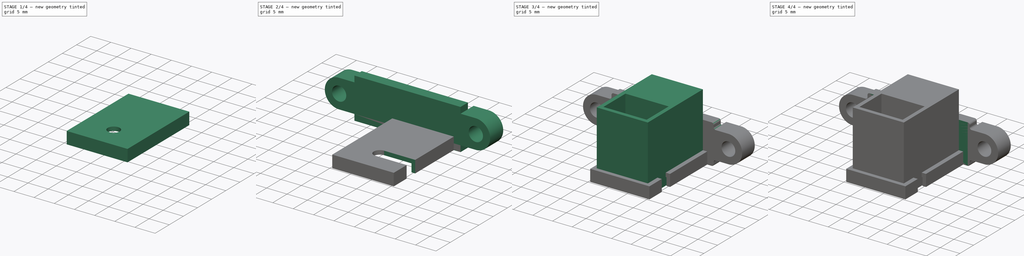
[diagram: build sequence overview — one tinted view per stage of 4, left to right]
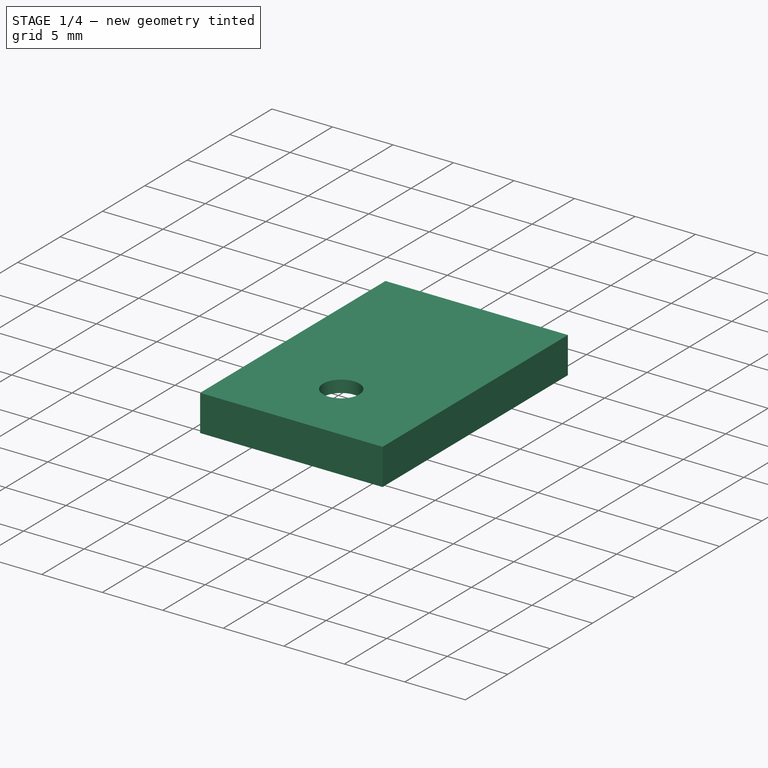
[diagram: stage 1 of 4 — iso view after this stage's code; geometry added in this stage tinted green]
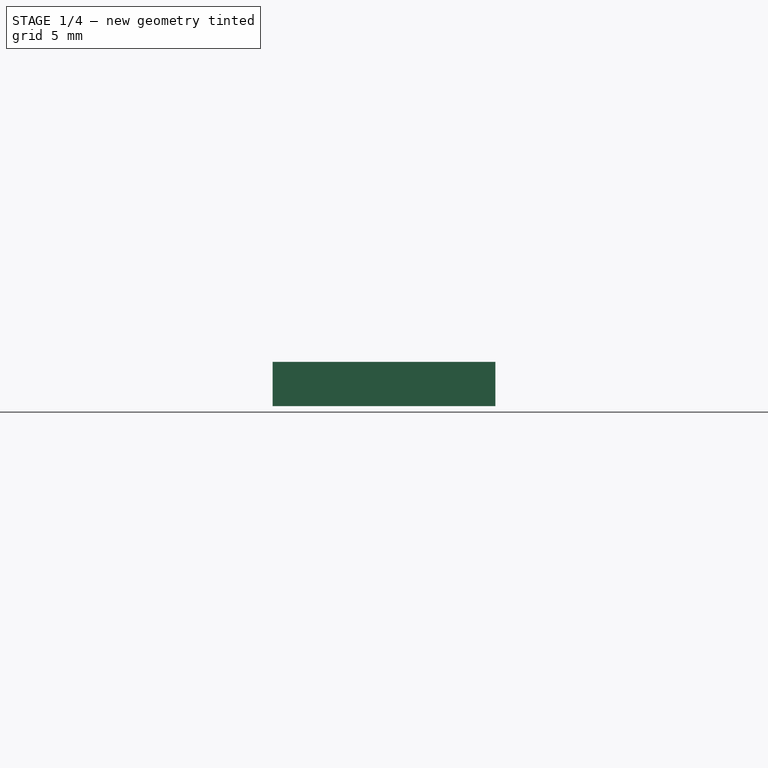
[diagram: stage 1 of 4 — front view after this stage's code; geometry added in this stage tinted green]
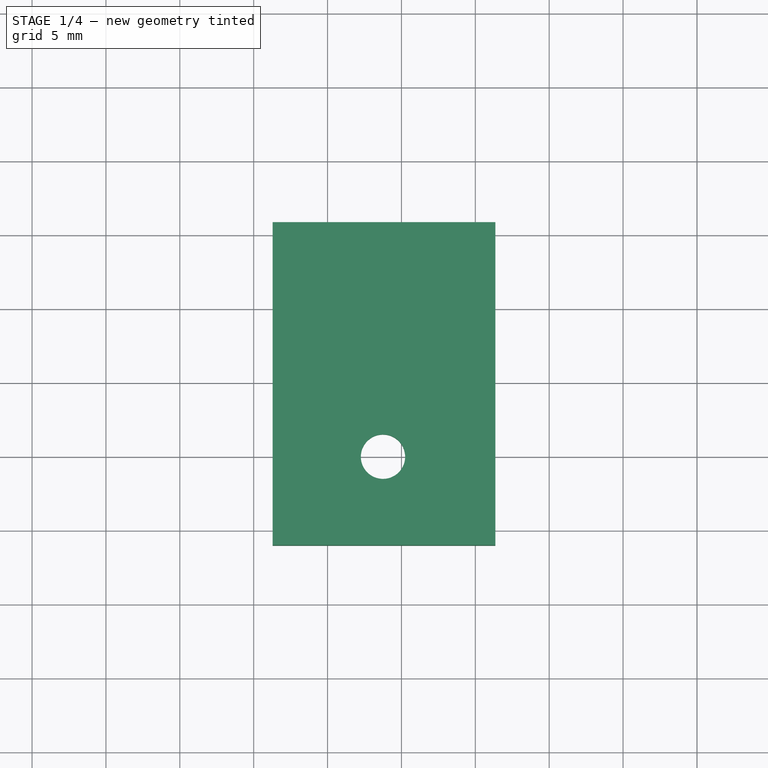
[diagram: stage 1 of 4 — top view after this stage's code; geometry added in this stage tinted green]
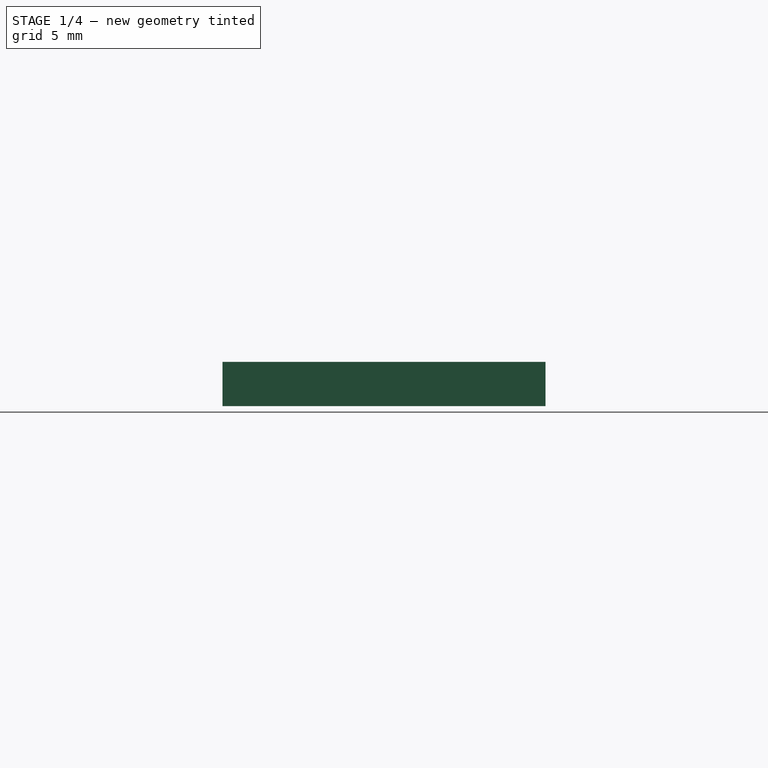
[diagram: stage 1 of 4 — right view after this stage's code; geometry added in this stage tinted green]
FCSTD DOCUMENT  (FreeCAD 1.0R39109 (Git))
Label: FilamentCleaner
License: All rights reserved
LicenseURL: http://en.wikipedia.org/wiki/All_rights_reserved
objects: Sketcher::SketchObject×12, PartDesign::Pocket×7, PartDesign::Pad×4, PartDesign::Body×3, PartDesign::Fillet×2
note: 66 computed .brp shape members not serialized (recipe doc carries the construction recipe); baked Part::Feature solids carry a one-line shape summary decoded from their .brp

FEATURE [Sketcher::SketchObject] Sketch017
  ArcFitTolerance = 1e-06
  AttachmentSupport = -> [XY_Plane004]
  FullyConstrained = false
  MakeInternals = false
  MapMode = 5
  sketch-geometry (10):
    g0: LineSegment [constr] StartX=-2.72 StartY=0 StartZ=0 EndX=-2.72 EndY=-20.0035 EndZ=0
    g1: LineSegment [constr] StartX=-2.72 StartY=-20.0035 StartZ=0 EndX=10.25 EndY=-20.0035 EndZ=0
    g2: LineSegment [constr] StartX=10.25 StartY=-20.0035 StartZ=0 EndX=10.25 EndY=0 EndZ=0
    g3: LineSegment [constr] StartX=10.25 StartY=0 StartZ=0 EndX=-2.72 EndY=0 EndZ=0
    g4: LineSegment [constr] StartX=10.25 StartY=0 StartZ=0 EndX=11.25 EndY=1 EndZ=0
    g5: LineSegment StartX=11.3568 StartY=0.865122 StartZ=0 EndX=-3.72 EndY=0.865122 EndZ=0
    g6: LineSegment StartX=-3.72 StartY=-21.0035 StartZ=0 EndX=11.3568 EndY=-21.0035 EndZ=0
    g7: LineSegment StartX=-3.72 StartY=0.865122 StartZ=0 EndX=-3.72 EndY=-21.0035 EndZ=0
    g8: LineSegment StartX=11.3568 StartY=-21.0035 StartZ=0 EndX=11.3568 EndY=0.865122 EndZ=0
    g9: LineSegment [constr] StartX=-2.72 StartY=-20.0035 StartZ=0 EndX=-3.72 EndY=-21.0035 EndZ=0
  constraints (26):
    c: Coincident(g0,g1)
    c: Coincident(g1,g2)
    c: Coincident(g2,g3)
    c: Coincident(g3,g0)
    c: Vertical(g0)
    c: Vertical(g2)
    c: Horizontal(g1)
    c: Horizontal(g3)
    c: Distance(g0,g2) = 12.97
    c: PointOnObject(g0,g-1)
    c: Angle(g-1,g4) = 0.785398
    c: Coincident(g4,g2)
    c: DistanceX(g2,g4) = 1
    c: Coincident(g7,g5)
    c: Coincident(g7,g6)
    c: Vertical(g7)
    c: Coincident(g8,g6)
    c: Coincident(g8,g5)
    c: Vertical(g8)
    c: Equal(g7,g8)
    c: Horizontal(g5)
    c: DistanceX(g-2,g0) = -2.72
    c: DistanceX(g5,g-1) = 3.72
    c: Coincident(g9,g0)
    c: Coincident(g9,g6)
    c: DistanceY(g9,g9) = 1
FEATURE [PartDesign::Pad] Pad006
  Direction = (0,0,1)
  Length = 3
  Length2 = 10
  Profile = -> Sketch017
  ReferenceAxis = -> Sketch017 [N_Axis]
  Suppressed = false
  Type = 0
FEATURE [Sketcher::SketchObject] Sketch018
  ArcFitTolerance = 1e-06
  AttachmentSupport = -> [Pad006]
  ExternalGeometry = -> [Sketch017]
  FullyConstrained = true
  MakeInternals = false
  MapMode = 5
  Placement = pos=(0,0,0) rot=(1,0,0;3.14159rad)
  sketch-geometry (6):
    g0: LineSegment [constr] StartX=-3.72 StartY=21.0035 StartZ=0 EndX=-2.82 EndY=20.1035 EndZ=0
    g1: LineSegment StartX=-2.82 StartY=20.1035 StartZ=0 EndX=-2.82 EndY=0.034878 EndZ=0
    g2: LineSegment [constr] StartX=11.3568 StartY=-0.865122 StartZ=0 EndX=10.4568 EndY=0.034878 EndZ=0
    g3: LineSegment StartX=10.4568 StartY=0.034878 StartZ=0 EndX=10.4568 EndY=20.1035 EndZ=0
    g4: LineSegment StartX=10.4568 StartY=20.1035 StartZ=0 EndX=-2.82 EndY=20.1035 EndZ=0
    g5: LineSegment StartX=-2.82 StartY=0.034878 StartZ=0 EndX=10.4568 EndY=0.034878 EndZ=0
  constraints (16):
    c: Angle(g-1,g0) = -0.785398
    c: Coincident(g0,g-4)
    c: DistanceX(g0,g0) = 0.9
    c: Vertical(g1)
    c: Coincident(g1,g0)
    c: Angle(g-5,g2) = 0.785398
    c: DistanceX(g2,g2) = 0.9
    c: Coincident(g2,g-6)
    c: Vertical(g3)
    c: Coincident(g3,g2)
    c: Coincident(g4,g3)
    c: Coincident(g4,g0)
    c: Horizontal(g4)
    c: Coincident(g5,g1)
    c: Coincident(g5,g2)
    c: Horizontal(g5)
FEATURE [PartDesign::Pocket] Pocket009
  BaseFeature = -> Pad006
  Direction = (0,0,1)
  Length = 2
  Length2 = 5
  Profile = -> Sketch018
  ReferenceAxis = -> Sketch018 [N_Axis]
  Suppressed = false
  Type = 0
FEATURE [Sketcher::SketchObject] Sketch020
  ArcFitTolerance = 1e-06
  AttachmentSupport = -> [Pocket008]
  ExternalGeometry = -> [Pocket008]
  FullyConstrained = true
  MakeInternals = false
  MapMode = 5
  Placement = pos=(0,3.8e-15,17) rot=(0,0,1;0rad)
  sketch-geometry (8):
    g0: LineSegment StartX=-2.75 StartY=0 StartZ=0 EndX=-2.75 EndY=-20 EndZ=0
    g1: LineSegment StartX=-2.75 StartY=-20 StartZ=0 EndX=10.25 EndY=-20 EndZ=0
    g2: LineSegment StartX=10.25 StartY=-20 StartZ=0 EndX=10.25 EndY=0 EndZ=0
    g3: LineSegment StartX=10.25 StartY=0 StartZ=0 EndX=-2.75 EndY=0 EndZ=0
    g4: LineSegment StartX=-1.75 StartY=-11 StartZ=0 EndX=-1.75 EndY=-19 EndZ=0
    g5: LineSegment StartX=-1.75 StartY=-19 StartZ=0 EndX=9.25 EndY=-19 EndZ=0
    g6: LineSegment StartX=9.25 StartY=-19 StartZ=0 EndX=9.25 EndY=-11 EndZ=0
    g7: LineSegment StartX=9.25 StartY=-11 StartZ=0 EndX=-1.75 EndY=-11 EndZ=0
  constraints (18):
    c: Coincident(g-6,g0)
    c: Coincident(g0,g-5)
    c: Coincident(g0,g1)
    c: Coincident(g1,g-5)
    c: Coincident(g1,g2)
    c: Coincident(g2,g-6)
    c: Coincident(g2,g3)
    c: Coincident(g3,g0)
    c: Coincident(g4,g5)
    c: Coincident(g5,g6)
    c: Coincident(g6,g7)
    c: Coincident(g7,g4)
    c: Vertical(g4)
    c: Vertical(g6)
    c: Horizontal(g5)
    c: Horizontal(g7)
    c: Coincident(g4,g-9)
    c: Coincident(g5,g-10)
FEATURE [PartDesign::Body] Body003
  AllowCompound = false
  Group = -> [Sketch012,Pad004,Sketch013,Pocket006,Fillet003,Sketch014,Pad005,Sketch015,Pocket007,Sketch016,Pocket008,Sketch020]
  Origin = -> Origin003
  Tip = -> Pocket008
FEATURE [Sketcher::SketchObject] Sketch021
  ArcFitTolerance = 1e-06
  AttachmentSupport = -> [Pocket009]
  FullyConstrained = false
  MakeInternals = false
  MapMode = 5
  Placement = pos=(0,0,2) rot=(1,0,0;3.14159rad)
  sketch-geometry (2):
    g0: GeomPoint X=3.74994 Y=15.0157 Z=0
    g1: Circle CenterX=3.74994 CenterY=15.0157 CenterZ=0 NormalX=0 NormalY=0 NormalZ=1 AngleXU=0 Radius=1.5
  constraints (2):
    c: Diameter(g1) = 3
    c: Coincident(g1,g0)
FEATURE [PartDesign::Pocket] Pocket010
  BaseFeature = -> Pocket009
  Direction = (0,0,1)
  Length = 5
  Length2 = 5
  Profile = -> Sketch021
  ReferenceAxis = -> Sketch021 [N_Axis]
  Suppressed = false
  Type = 0
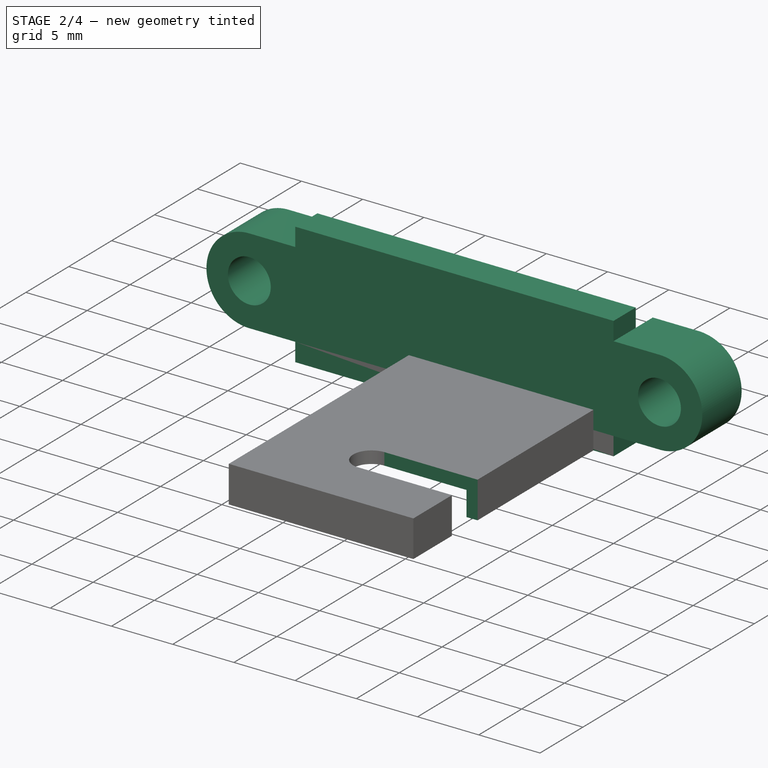
[diagram: stage 2 of 4 — iso view after this stage's code; geometry added in this stage tinted green]
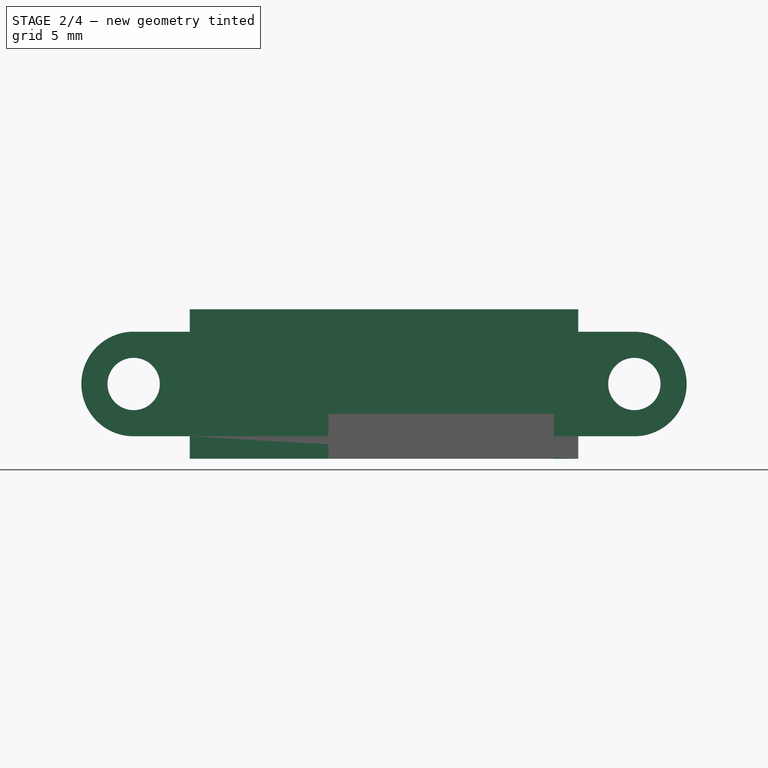
[diagram: stage 2 of 4 — front view after this stage's code; geometry added in this stage tinted green]
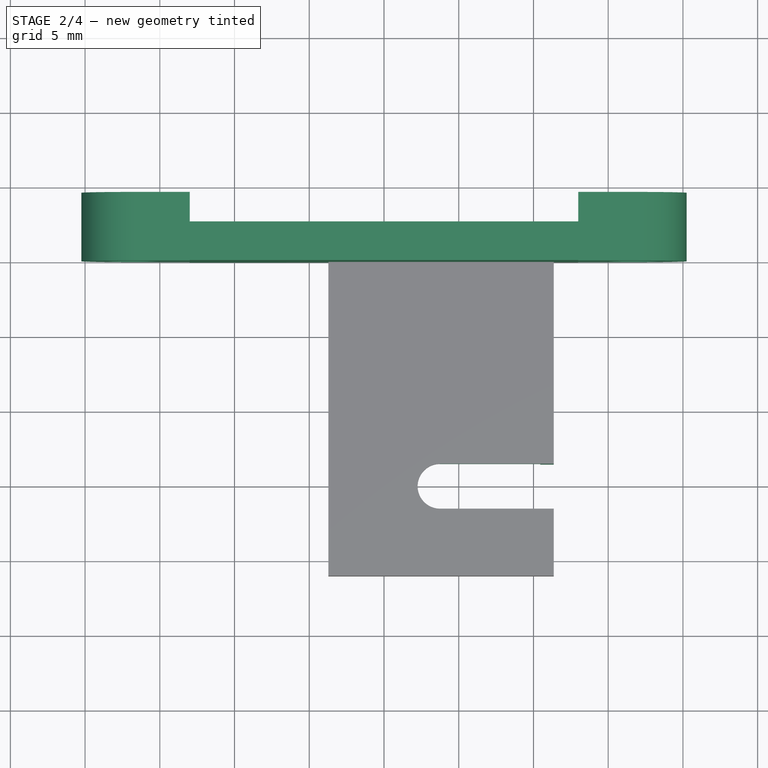
[diagram: stage 2 of 4 — top view after this stage's code; geometry added in this stage tinted green]
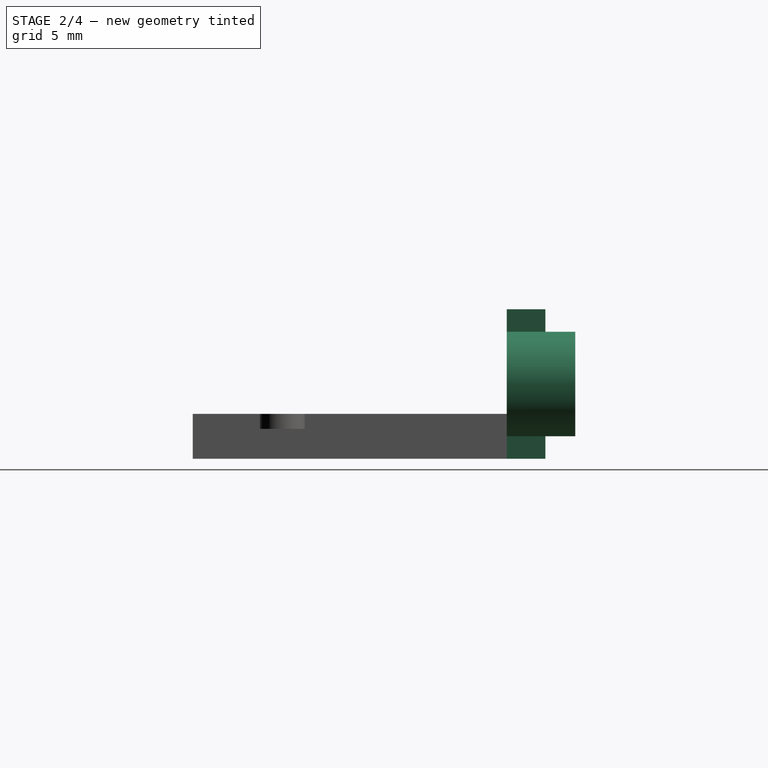
[diagram: stage 2 of 4 — right view after this stage's code; geometry added in this stage tinted green]
FEATURE [PartDesign::Body] Body
  AllowCompound = false
  Group = -> [Sketch,Pad,Sketch001,Pocket,Fillet]
  Origin = -> Origin
  Tip = -> Fillet
FEATURE [Sketcher::SketchObject] Sketch012
  ArcFitTolerance = 1e-06
  AttachmentSupport = -> [XY_Plane003]
  FullyConstrained = false
  MakeInternals = false
  MapMode = 5
  sketch-geometry (9):
    g0: LineSegment StartX=-20.5 StartY=4.58254 StartZ=0 EndX=-20.5 EndY=0 EndZ=0
    g1: LineSegment StartX=-20.5 StartY=0 StartZ=0 EndX=20.5 EndY=0 EndZ=0
    g2: LineSegment StartX=20.5 StartY=0 StartZ=0 EndX=20.5 EndY=4.58254 EndZ=0
    g3: LineSegment StartX=20.5 StartY=4.58254 StartZ=0 EndX=13 EndY=4.58254 EndZ=0
    g4: LineSegment StartX=-13 StartY=2.58254 StartZ=0 EndX=13 EndY=2.58254 EndZ=0
    g5: LineSegment StartX=13 StartY=2.58254 StartZ=0 EndX=13 EndY=4.58254 EndZ=0
    g6: LineSegment [constr] StartX=-13 StartY=4.58254 StartZ=0 EndX=13 EndY=4.58254 EndZ=0
    g7: LineSegment StartX=-20.5 StartY=4.58254 StartZ=0 EndX=-13 EndY=4.58254 EndZ=0
    g8: LineSegment StartX=-13 StartY=4.58254 StartZ=0 EndX=-13 EndY=2.58254 EndZ=0
  constraints (24):
    c: Coincident(g0,g1)
    c: Coincident(g1,g2)
    c: Coincident(g2,g3)
    c: Vertical(g0)
    c: Vertical(g2)
    c: Horizontal(g1)
    c: PointOnObject(g1,g-1)
    c: Symmetric(g2,g0,g-2)
    c: Horizontal(g4)
    c: Coincident(g4,g5)
    c: Coincident(g3,g5)
    c: Coincident(g6,g3)
    c: Horizontal(g6)
    c: Vertical(g5)
    c: Coincident(g0,g7)
    c: Coincident(g7,g6)
    c: Horizontal(g7)
    c: Coincident(g7,g8)
    c: Coincident(g8,g4)
    c: Vertical(g8)
    c: Distance(g1) = 41
    c: Equal(g7,g3)
    c: Distance(g7) = 7.5
    c: Distance(g8) = 2
FEATURE [PartDesign::Pad] Pad004
  Direction = (0,0,1)
  Length = 10
  Length2 = 10
  Profile = -> Sketch012
  ReferenceAxis = -> Sketch012 [N_Axis]
  Suppressed = false
  Type = 0
FEATURE [Sketcher::SketchObject] Sketch013
  ArcFitTolerance = 1e-06
  AttachmentSupport = -> [Pad004]
  ExternalGeometry = -> [Pad004]
  FullyConstrained = false
  MakeInternals = false
  MapMode = 5
  Placement = pos=(0,4.58254,0) rot=(0,0.707107,0.707107;3.14159rad)
  sketch-geometry (22):
    g0: LineSegment [constr] StartX=-16.75 StartY=5 StartZ=0 EndX=-20.5 EndY=-3e-16 EndZ=0
    g1: LineSegment [constr] StartX=-20.5 StartY=10 StartZ=0 EndX=-16.75 EndY=5 EndZ=0
    g2: ArcOfCircle CenterX=-16.75 CenterY=5 CenterZ=0 NormalX=0 NormalY=0 NormalZ=1 AngleXU=0 Radius=3.5 StartAngle=1.5708 EndAngle=4.74661
    g3: Circle CenterX=-16.75 CenterY=5 CenterZ=0 NormalX=0 NormalY=0 NormalZ=1 AngleXU=0 Radius=1.75
    g4: LineSegment StartX=-20.5 StartY=10 StartZ=0 EndX=-20.5 EndY=0 EndZ=0
    g5: LineSegment StartX=-20.5 StartY=-3e-16 StartZ=0 EndX=-13 EndY=0 EndZ=0
    g6: LineSegment StartX=-20.5 StartY=10 StartZ=0 EndX=-13 EndY=10 EndZ=0
    g7: LineSegment StartX=-13 StartY=10 StartZ=0 EndX=-13 EndY=8.5 EndZ=0
    g8: LineSegment StartX=-16.75 StartY=8.5 StartZ=0 EndX=-13 EndY=8.5 EndZ=0
    g9: LineSegment StartX=-16.6303 StartY=1.50205 StartZ=0 EndX=-13 EndY=1.50205 EndZ=0
    g10: LineSegment StartX=-13 StartY=0 StartZ=0 EndX=-13 EndY=1.50205 EndZ=0
    g11: LineSegment [constr] StartX=16.75 StartY=5 StartZ=0 EndX=20.5 EndY=2e-16 EndZ=0
    g12: LineSegment [constr] StartX=20.5 StartY=10 StartZ=0 EndX=16.75 EndY=5 EndZ=0
    g13: ArcOfCircle CenterX=16.75 CenterY=5 CenterZ=0 NormalX=0 NormalY=0 NormalZ=1 AngleXU=0 Radius=3.5 StartAngle=4.67817 EndAngle=7.85398
    g14: Circle CenterX=16.75 CenterY=5 CenterZ=0 NormalX=0 NormalY=0 NormalZ=1 AngleXU=0 Radius=1.75
    g15: LineSegment StartX=20.5 StartY=10 StartZ=0 EndX=20.5 EndY=0 EndZ=0
    g16: LineSegment StartX=20.5 StartY=-3e-16 StartZ=0 EndX=13 EndY=0 EndZ=0
    g17: LineSegment StartX=20.5 StartY=10 StartZ=0 EndX=13 EndY=10 EndZ=0
    g18: LineSegment StartX=13 StartY=10 StartZ=0 EndX=13 EndY=8.5 EndZ=0
    g19: LineSegment StartX=16.75 StartY=8.5 StartZ=0 EndX=13 EndY=8.5 EndZ=0
    g20: LineSegment StartX=16.6303 StartY=1.50205 StartZ=0 EndX=13 EndY=1.50205 EndZ=0
    g21: LineSegment StartX=13 StartY=0 StartZ=0 EndX=13 EndY=1.50205 EndZ=0
  constraints (38):
    c: Coincident(g0,g-4)
    c: Coincident(g1,g-4)
    c: Coincident(g1,g0)
    c: Diameter(g2) = 7
    c: Coincident(g2,g0)
    c: Diameter(g3) = 3.5
    c: Coincident(g3,g0)
    c: Coincident(g4,g1)
    c: Coincident(g4,g0)
    c: Coincident(g5,g0)
    c: Coincident(g5,g-3)
    c: Coincident(g6,g1)
    c: Coincident(g6,g-3)
    c: Coincident(g7,g6)
    c: Vertical(g7)
    c: Coincident(g8,g2)
    c: Coincident(g8,g7)
    c: Horizontal(g8)
    c: Horizontal(g9)
    c: Coincident(g9,g2)
    c: Coincident(g9,g10)
    c: Coincident(g12,g11)
    c: Diameter(g13) = 7
    c: Coincident(g13,g11)
    c: Diameter(g14) = 3.5
    c: Coincident(g14,g11)
    c: Coincident(g15,g12)
    c: Coincident(g15,g11)
    c: Coincident(g16,g11)
    c: Coincident(g17,g12)
    c: Coincident(g18,g17)
    c: Vertical(g18)
    c: Coincident(g19,g13)
    c: Coincident(g19,g18)
    c: Horizontal(g19)
    c: Horizontal(g20)
    c: Coincident(g20,g13)
    c: Coincident(g20,g21)
FEATURE [PartDesign::Pocket] Pocket006
  BaseFeature = -> Pad004
  Direction = (0,-1,2e-16)
  Length = 5
  Length2 = 5
  Profile = -> Sketch013
  ReferenceAxis = -> Sketch013 [N_Axis]
  Suppressed = false
  Type = 0
FEATURE [Sketcher::SketchObject] Sketch022
  ArcFitTolerance = 1e-06
  AttachmentSupport = -> [Pocket010]
  ExternalGeometry = -> [Pocket010]
  FullyConstrained = false
  MakeInternals = false
  MapMode = 5
  Placement = pos=(0,0,3) rot=(0,0,1;0rad)
  sketch-geometry (5):
    g0: LineSegment [constr] StartX=3.74994 StartY=-13.5157 StartZ=0 EndX=3.74994 EndY=-16.5157 EndZ=0
    g1: LineSegment StartX=3.74994 StartY=-16.5157 StartZ=0 EndX=11.9462 EndY=-16.5157 EndZ=0
    g2: LineSegment StartX=11.9462 StartY=-16.5157 StartZ=0 EndX=11.9462 EndY=-13.5157 EndZ=0
    g3: LineSegment StartX=11.9462 StartY=-13.5157 StartZ=0 EndX=3.74994 EndY=-13.5157 EndZ=0
    g4: ArcOfCircle CenterX=3.74994 CenterY=-15.0157 CenterZ=0 NormalX=0 NormalY=0 NormalZ=1 AngleXU=0 Radius=1.5 StartAngle=1.5708 EndAngle=4.71239
  constraints (11):
    c: Coincident(g0,g1)
    c: Coincident(g1,g2)
    c: Coincident(g2,g3)
    c: Coincident(g3,g0)
    c: Vertical(g0)
    c: Vertical(g2)
    c: Horizontal(g1)
    c: Horizontal(g3)
    c: Coincident(g4,g-3)
    c: Coincident(g4,g0)
    c: Coincident(g4,g0)
FEATURE [PartDesign::Pocket] Pocket011
  BaseFeature = -> Pocket010
  Direction = (0,0,-1)
  Length = 5
  Length2 = 5
  Profile = -> Sketch022
  ReferenceAxis = -> Sketch022 [N_Axis]
  Suppressed = false
  Type = 0
FEATURE [PartDesign::Body] Body004
  AllowCompound = false
  Group = -> [Sketch017,Pad006,Sketch018,Pocket009,Sketch021,Pocket010,Sketch022,Pocket011]
  Origin = -> Origin004
  Placement = pos=(0,0,16) rot=(0,0,1;0rad)
  Tip = -> Pocket011
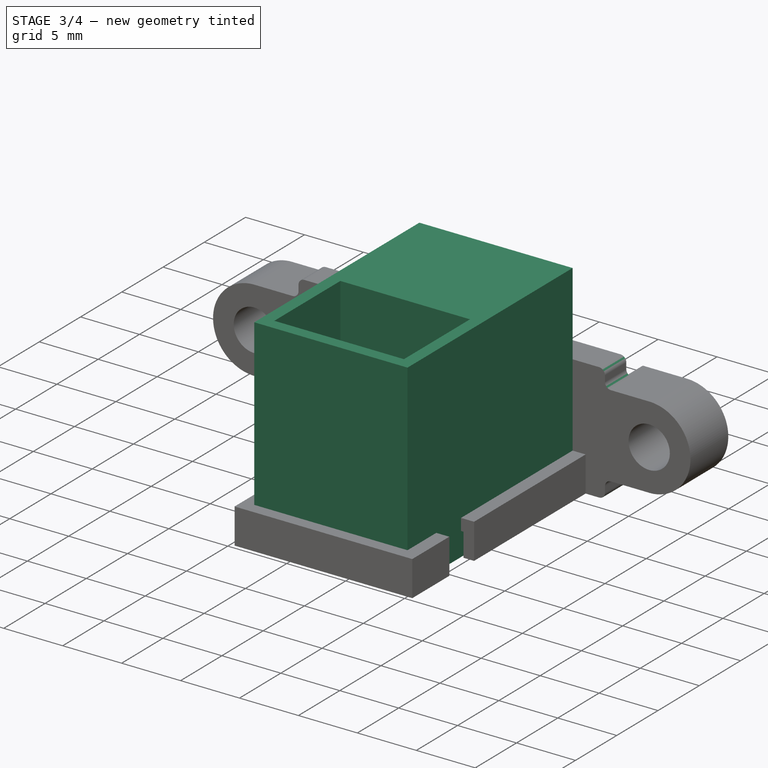
[diagram: stage 3 of 4 — iso view after this stage's code; geometry added in this stage tinted green]
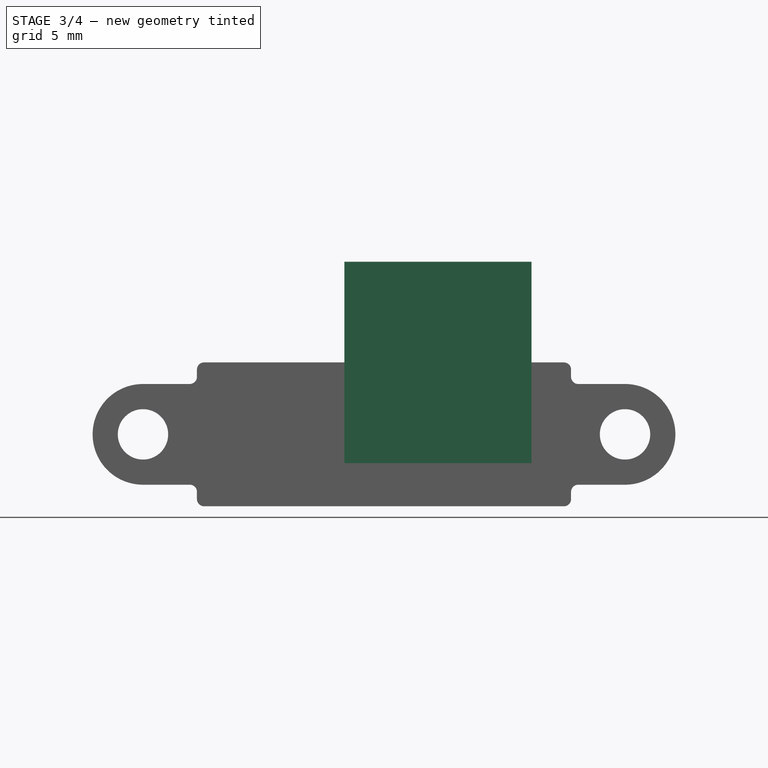
[diagram: stage 3 of 4 — front view after this stage's code; geometry added in this stage tinted green]
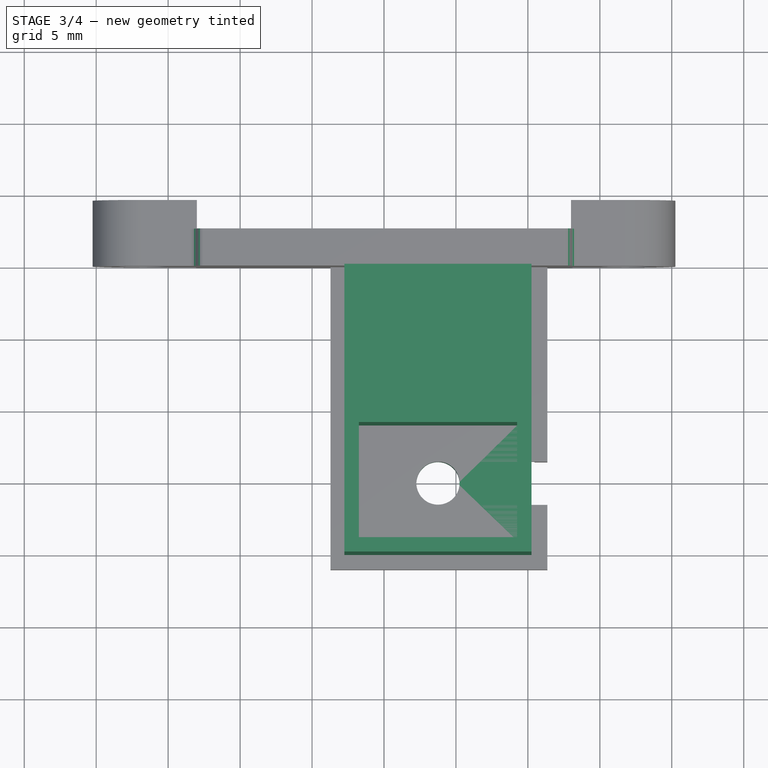
[diagram: stage 3 of 4 — top view after this stage's code; geometry added in this stage tinted green]
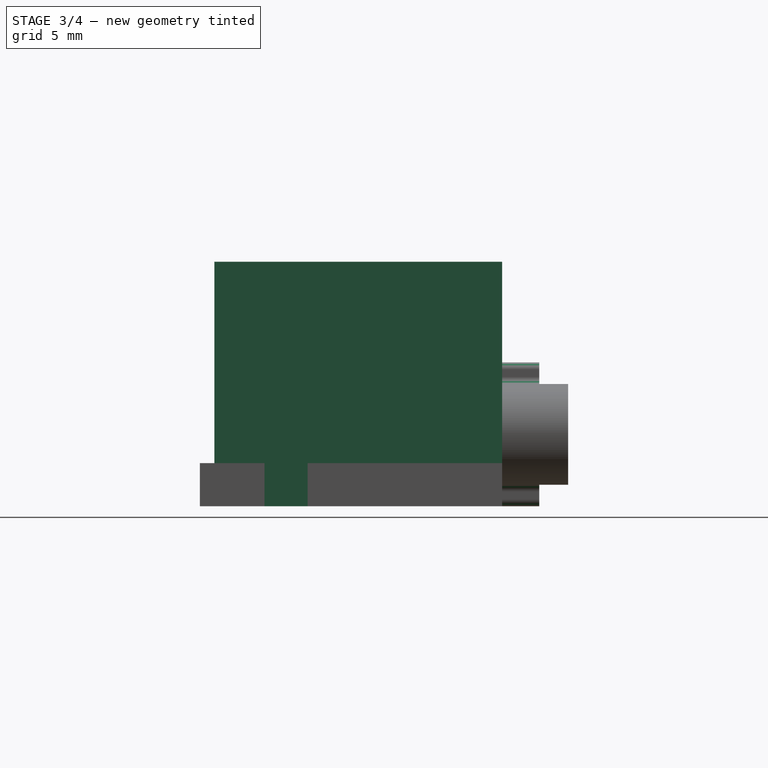
[diagram: stage 3 of 4 — right view after this stage's code; geometry added in this stage tinted green]
FEATURE [PartDesign::Fillet] Fillet003
  Base = -> Pocket006 [Edge14,Edge36,Edge26,Edge9,Edge43,Edge42,Edge37,Edge38]
  BaseFeature = -> Pocket006
  Radius = 0.5
  SupportTransform = false
  Suppressed = false
  UseAllEdges = false
FEATURE [Sketcher::SketchObject] Sketch014
  ArcFitTolerance = 1e-06
  AttachmentSupport = -> [Fillet003]
  ExternalGeometry = -> [Fillet003]
  FullyConstrained = true
  MakeInternals = false
  MapMode = 5
  Placement = pos=(0,0,0) rot=(1,0,0;1.5708rad)
  sketch-geometry (5):
    g0: LineSegment StartX=-2.75 StartY=17 StartZ=0 EndX=-2.75 EndY=0 EndZ=0
    g1: LineSegment StartX=-2.75 StartY=0 StartZ=0 EndX=10.25 EndY=0 EndZ=0
    g2: LineSegment StartX=10.25 StartY=0 StartZ=0 EndX=10.25 EndY=17 EndZ=0
    g3: LineSegment StartX=10.25 StartY=17 StartZ=0 EndX=-2.75 EndY=17 EndZ=0
    g4: LineSegment [constr] StartX=16.75 StartY=5 StartZ=0 EndX=20.25 EndY=5 EndZ=0
  constraints (15):
    c: Coincident(g0,g1)
    c: Coincident(g1,g2)
    c: Coincident(g2,g3)
    c: Coincident(g3,g0)
    c: Vertical(g0)
    c: Vertical(g2)
    c: Horizontal(g1)
    c: Horizontal(g3)
    c: PointOnObject(g1,g-1)
    c: Distance(g2) = 17
    c: Distance(g3) = 13
    c: Coincident(g4,g-3)
    c: PointOnObject(g4,g-3)
    c: Horizontal(g4)
    c: Distance(g4,g2) = 10
FEATURE [PartDesign::Pad] Pad005
  BaseFeature = -> Fillet003
  Direction = (0,-1,2e-16)
  Length = 20
  Length2 = 10
  Profile = -> Sketch014
  ReferenceAxis = -> Sketch014 [N_Axis]
  Suppressed = false
  Type = 0
FEATURE [Sketcher::SketchObject] Sketch015
  ArcFitTolerance = 1e-06
  AttachmentSupport = -> [Pad005]
  ExternalGeometry = -> [Pad005]
  FullyConstrained = true
  MakeInternals = false
  MapMode = 5
  Placement = pos=(0,3.8e-15,17) rot=(0,0,1;0rad)
  sketch-geometry (11):
    g0: LineSegment [constr] StartX=-2.75 StartY=-20 StartZ=0 EndX=10.25 EndY=-20 EndZ=0
    g1: LineSegment [constr] StartX=10.25 StartY=-20 StartZ=0 EndX=10.25 EndY=0 EndZ=0
    g2: LineSegment [constr] StartX=10.25 StartY=0 StartZ=0 EndX=-2.75 EndY=0 EndZ=0
    g3: LineSegment [constr] StartX=-2.75 StartY=0 StartZ=0 EndX=-2.75 EndY=-20 EndZ=0
    g4: LineSegment StartX=-1.75 StartY=-19 StartZ=0 EndX=9.25 EndY=-19 EndZ=0
    g5: LineSegment StartX=9.25 StartY=-19 StartZ=0 EndX=9.25 EndY=-11 EndZ=0
    g6: LineSegment StartX=9.25 StartY=-11 StartZ=0 EndX=-1.75 EndY=-11 EndZ=0
    g7: LineSegment StartX=-1.75 StartY=-11 StartZ=0 EndX=-1.75 EndY=-19 EndZ=0
    g8: LineSegment [constr] StartX=-2.75 StartY=-20 StartZ=0 EndX=-1.75 EndY=-19 EndZ=0
    g9: LineSegment [constr] StartX=10.25 StartY=-20 StartZ=0 EndX=9.25 EndY=-19 EndZ=0
    g10: LineSegment [constr] StartX=9.25 StartY=-11 StartZ=0 EndX=10.25 EndY=-11 EndZ=0
  constraints (29):
    c: Coincident(g0,g1)
    c: Coincident(g1,g2)
    c: Coincident(g2,g3)
    c: Coincident(g3,g0)
    c: Horizontal(g0)
    c: Horizontal(g2)
    c: Vertical(g1)
    c: Vertical(g3)
    c: Coincident(g4,g5)
    c: Coincident(g5,g6)
    c: Coincident(g6,g7)
    c: Coincident(g7,g4)
    c: Horizontal(g4)
    c: Horizontal(g6)
    c: Vertical(g5)
    c: Vertical(g7)
    c: Coincident(g8,g0)
    c: Coincident(g8,g4)
    c: Coincident(g9,g1)
    c: Coincident(g9,g5)
    c: Perpendicular(g8,g9)
    c: Distance(g4,g0) = 1
    c: Coincident(g0,g-5)
    c: Coincident(g1,g-6)
    c: Distance(g7) = 8
    c: Distance(g10) = 1
    c: Horizontal(g10)
    c: PointOnObject(g10,g1)
    c: Coincident(g10,g5)
FEATURE [PartDesign::Pocket] Pocket007
  BaseFeature = -> Pad005
  Direction = (0,0,-1)
  Length = 14
  Length2 = 5
  Profile = -> Sketch015
  ReferenceAxis = -> Sketch015 [N_Axis]
  Suppressed = false
  Type = 0
FEATURE [Sketcher::SketchObject] Sketch016
  ArcFitTolerance = 1e-06
  AttachmentSupport = -> [Pocket007]
  ExternalGeometry = -> [Pocket007]
  FullyConstrained = false
  MakeInternals = false
  MapMode = 5
  Placement = pos=(0,0,3) rot=(0,0,1;0rad)
  sketch-geometry (3):
    g0: LineSegment [constr] StartX=3.75 StartY=-15 StartZ=0 EndX=-1.75 EndY=-19 EndZ=0
    g1: LineSegment [constr] StartX=-1.75 StartY=-11 StartZ=0 EndX=3.75 EndY=-15 EndZ=0
    g2: Circle CenterX=3.75 CenterY=-15 CenterZ=0 NormalX=0 NormalY=0 NormalZ=1 AngleXU=0 Radius=1.5
  constraints (5):
    c: Coincident(g0,g-6)
    c: Coincident(g1,g-5)
    c: Coincident(g1,g0)
    c: Diameter(g2) = 3
    c: Coincident(g2,g0)
FEATURE [PartDesign::Pocket] Pocket008
  BaseFeature = -> Pocket007
  Direction = (0,0,-1)
  Length = 5
  Length2 = 5
  Profile = -> Sketch016
  ReferenceAxis = -> Sketch016 [N_Axis]
  Suppressed = false
  Type = 1
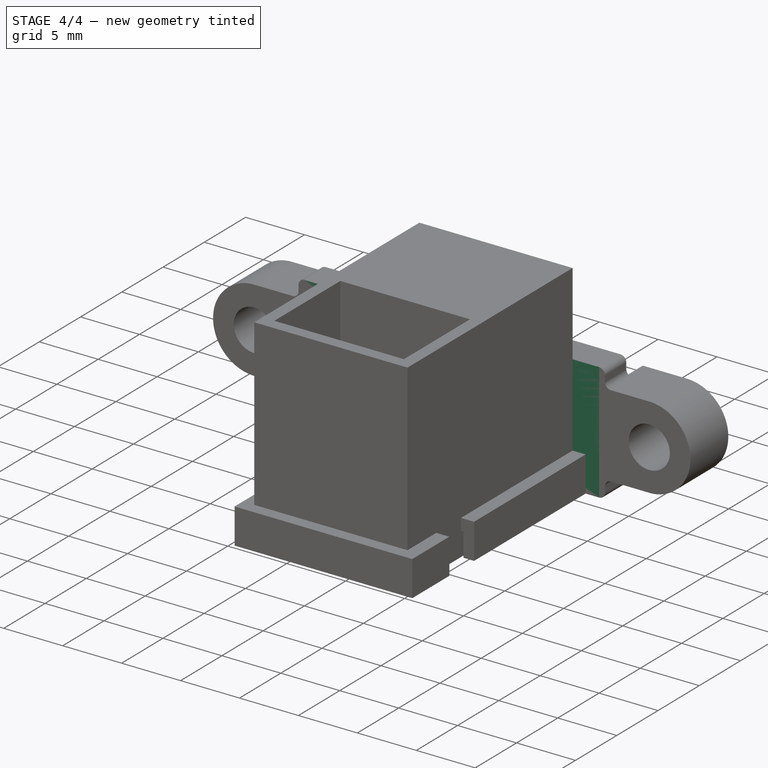
[diagram: stage 4 of 4 — iso view after this stage's code; geometry added in this stage tinted green]
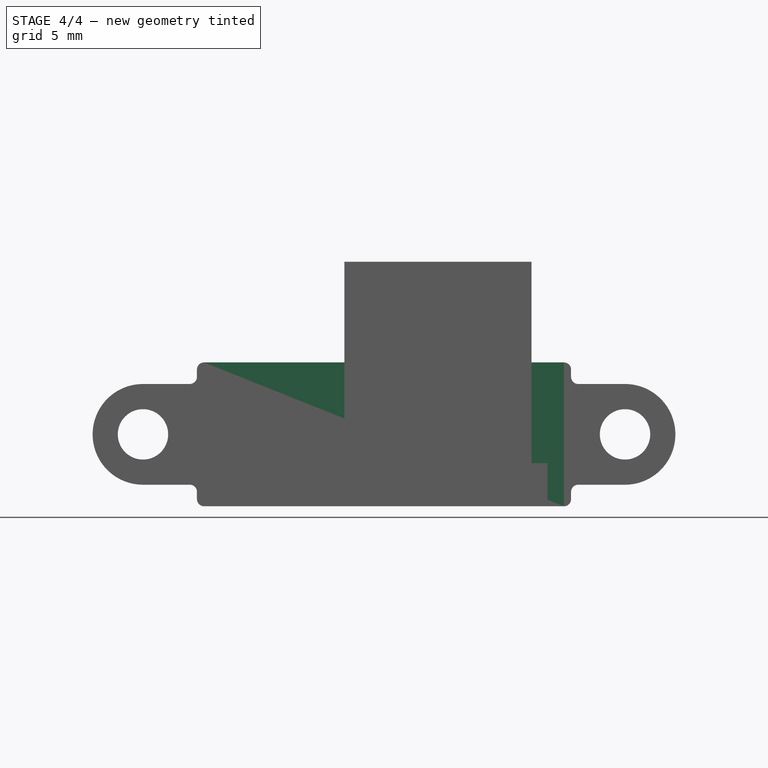
[diagram: stage 4 of 4 — front view after this stage's code; geometry added in this stage tinted green]
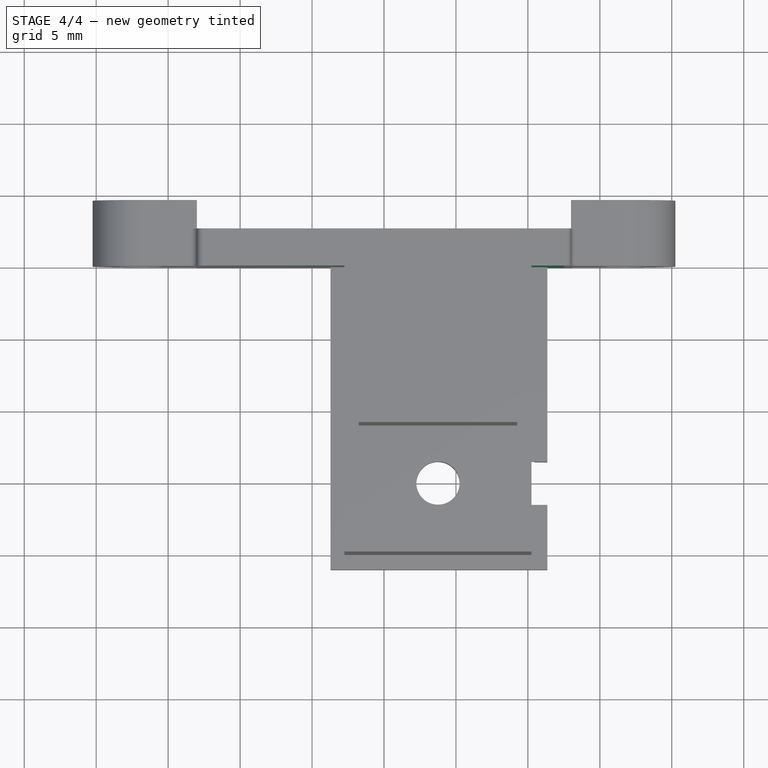
[diagram: stage 4 of 4 — top view after this stage's code; geometry added in this stage tinted green]
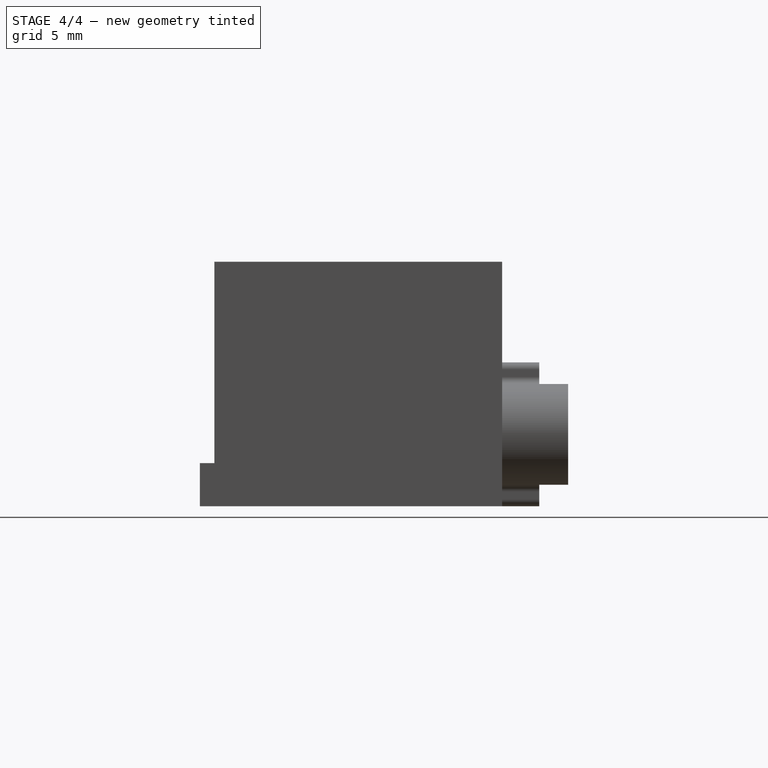
[diagram: stage 4 of 4 — right view after this stage's code; geometry added in this stage tinted green]
FEATURE [Sketcher::SketchObject] Sketch
  ArcFitTolerance = 1e-06
  AttachmentSupport = -> [XY_Plane]
  FullyConstrained = false
  MakeInternals = false
  MapMode = 5
  sketch-geometry (9):
    g0: LineSegment StartX=-20.5 StartY=4.58254 StartZ=0 EndX=-20.5 EndY=0 EndZ=0
    g1: LineSegment StartX=-20.5 StartY=0 StartZ=0 EndX=20.5 EndY=0 EndZ=0
    g2: LineSegment StartX=20.5 StartY=0 StartZ=0 EndX=20.5 EndY=4.58254 EndZ=0
    g3: LineSegment StartX=20.5 StartY=4.58254 StartZ=0 EndX=13 EndY=4.58254 EndZ=0
    g4: LineSegment StartX=-13 StartY=2.58254 StartZ=0 EndX=13 EndY=2.58254 EndZ=0
    g5: LineSegment StartX=13 StartY=2.58254 StartZ=0 EndX=13 EndY=4.58254 EndZ=0
    g6: LineSegment [constr] StartX=-13 StartY=4.58254 StartZ=0 EndX=13 EndY=4.58254 EndZ=0
    g7: LineSegment StartX=-20.5 StartY=4.58254 StartZ=0 EndX=-13 EndY=4.58254 EndZ=0
    g8: LineSegment StartX=-13 StartY=4.58254 StartZ=0 EndX=-13 EndY=2.58254 EndZ=0
  constraints (24):
    c: Coincident(g0,g1)
    c: Coincident(g1,g2)
    c: Coincident(g2,g3)
    c: Vertical(g0)
    c: Vertical(g2)
    c: Horizontal(g1)
    c: PointOnObject(g1,g-1)
    c: Symmetric(g2,g0,g-2)
    c: Horizontal(g4)
    c: Coincident(g4,g5)
    c: Coincident(g3,g5)
    c: Coincident(g6,g3)
    c: Horizontal(g6)
    c: Vertical(g5)
    c: Coincident(g0,g7)
    c: Coincident(g7,g6)
    c: Horizontal(g7)
    c: Coincident(g7,g8)
    c: Coincident(g8,g4)
    c: Vertical(g8)
    c: Distance(g1) = 41
    c: Equal(g7,g3)
    c: Distance(g7) = 7.5
    c: Distance(g8) = 2
FEATURE [PartDesign::Pad] Pad
  Direction = (0,0,1)
  Length = 10
  Length2 = 10
  Profile = -> Sketch
  ReferenceAxis = -> Sketch [N_Axis]
  Suppressed = false
  Type = 0
FEATURE [Sketcher::SketchObject] Sketch001
  ArcFitTolerance = 1e-06
  AttachmentSupport = -> [Pad]
  ExternalGeometry = -> [Pad]
  FullyConstrained = false
  MakeInternals = false
  MapMode = 5
  Placement = pos=(0,4.58254,0) rot=(0,0.707107,0.707107;3.14159rad)
  sketch-geometry (22):
    g0: LineSegment [constr] StartX=-16.75 StartY=5 StartZ=0 EndX=-20.5 EndY=-3e-16 EndZ=0
    g1: LineSegment [constr] StartX=-20.5 StartY=10 StartZ=0 EndX=-16.75 EndY=5 EndZ=0
    g2: ArcOfCircle CenterX=-16.75 CenterY=5 CenterZ=0 NormalX=0 NormalY=0 NormalZ=1 AngleXU=0 Radius=3.5 StartAngle=1.5708 EndAngle=4.74661
    g3: Circle CenterX=-16.75 CenterY=5 CenterZ=0 NormalX=0 NormalY=0 NormalZ=1 AngleXU=0 Radius=1.75
    g4: LineSegment StartX=-20.5 StartY=10 StartZ=0 EndX=-20.5 EndY=0 EndZ=0
    g5: LineSegment StartX=-20.5 StartY=-3e-16 StartZ=0 EndX=-13 EndY=0 EndZ=0
    g6: LineSegment StartX=-20.5 StartY=10 StartZ=0 EndX=-13 EndY=10 EndZ=0
    g7: LineSegment StartX=-13 StartY=10 StartZ=0 EndX=-13 EndY=8.5 EndZ=0
    g8: LineSegment StartX=-16.75 StartY=8.5 StartZ=0 EndX=-13 EndY=8.5 EndZ=0
    g9: LineSegment StartX=-16.6303 StartY=1.50205 StartZ=0 EndX=-13 EndY=1.50205 EndZ=0
    g10: LineSegment StartX=-13 StartY=0 StartZ=0 EndX=-13 EndY=1.50205 EndZ=0
    g11: LineSegment [constr] StartX=16.75 StartY=5 StartZ=0 EndX=20.5 EndY=2e-16 EndZ=0
    g12: LineSegment [constr] StartX=20.5 StartY=10 StartZ=0 EndX=16.75 EndY=5 EndZ=0
    g13: ArcOfCircle CenterX=16.75 CenterY=5 CenterZ=0 NormalX=0 NormalY=0 NormalZ=1 AngleXU=0 Radius=3.5 StartAngle=4.67817 EndAngle=7.85398
    g14: Circle CenterX=16.75 CenterY=5 CenterZ=0 NormalX=0 NormalY=0 NormalZ=1 AngleXU=0 Radius=1.75
    g15: LineSegment StartX=20.5 StartY=10 StartZ=0 EndX=20.5 EndY=0 EndZ=0
    g16: LineSegment StartX=20.5 StartY=-3e-16 StartZ=0 EndX=13 EndY=0 EndZ=0
    g17: LineSegment StartX=20.5 StartY=10 StartZ=0 EndX=13 EndY=10 EndZ=0
    g18: LineSegment StartX=13 StartY=10 StartZ=0 EndX=13 EndY=8.5 EndZ=0
    g19: LineSegment StartX=16.75 StartY=8.5 StartZ=0 EndX=13 EndY=8.5 EndZ=0
    g20: LineSegment StartX=16.6303 StartY=1.50205 StartZ=0 EndX=13 EndY=1.50205 EndZ=0
    g21: LineSegment StartX=13 StartY=0 StartZ=0 EndX=13 EndY=1.50205 EndZ=0
  constraints (38):
    c: Coincident(g0,g-4)
    c: Coincident(g1,g-4)
    c: Coincident(g1,g0)
    c: Diameter(g2) = 7
    c: Coincident(g2,g0)
    c: Diameter(g3) = 3.5
    c: Coincident(g3,g0)
    c: Coincident(g4,g1)
    c: Coincident(g4,g0)
    c: Coincident(g5,g0)
    c: Coincident(g5,g-3)
    c: Coincident(g6,g1)
    c: Coincident(g6,g-3)
    c: Coincident(g7,g6)
    c: Vertical(g7)
    c: Coincident(g8,g2)
    c: Coincident(g8,g7)
    c: Horizontal(g8)
    c: Horizontal(g9)
    c: Coincident(g9,g2)
    c: Coincident(g9,g10)
    c: Coincident(g12,g11)
    c: Diameter(g13) = 7
    c: Coincident(g13,g11)
    c: Diameter(g14) = 3.5
    c: Coincident(g14,g11)
    c: Coincident(g15,g12)
    c: Coincident(g15,g11)
    c: Coincident(g16,g11)
    c: Coincident(g17,g12)
    c: Coincident(g18,g17)
    c: Vertical(g18)
    c: Coincident(g19,g13)
    c: Coincident(g19,g18)
    c: Horizontal(g19)
    c: Horizontal(g20)
    c: Coincident(g20,g13)
    c: Coincident(g20,g21)
FEATURE [PartDesign::Pocket] Pocket
  BaseFeature = -> Pad
  Direction = (0,-1,2e-16)
  Length = 5
  Length2 = 5
  Profile = -> Sketch001
  ReferenceAxis = -> Sketch001 [N_Axis]
  Suppressed = false
  Type = 0
FEATURE [PartDesign::Fillet] Fillet
  Base = -> Pocket [Edge14,Edge36,Edge26,Edge9,Edge43,Edge42,Edge37,Edge38]
  BaseFeature = -> Pocket
  Radius = 0.5
  SupportTransform = false
  Suppressed = false
  UseAllEdges = false
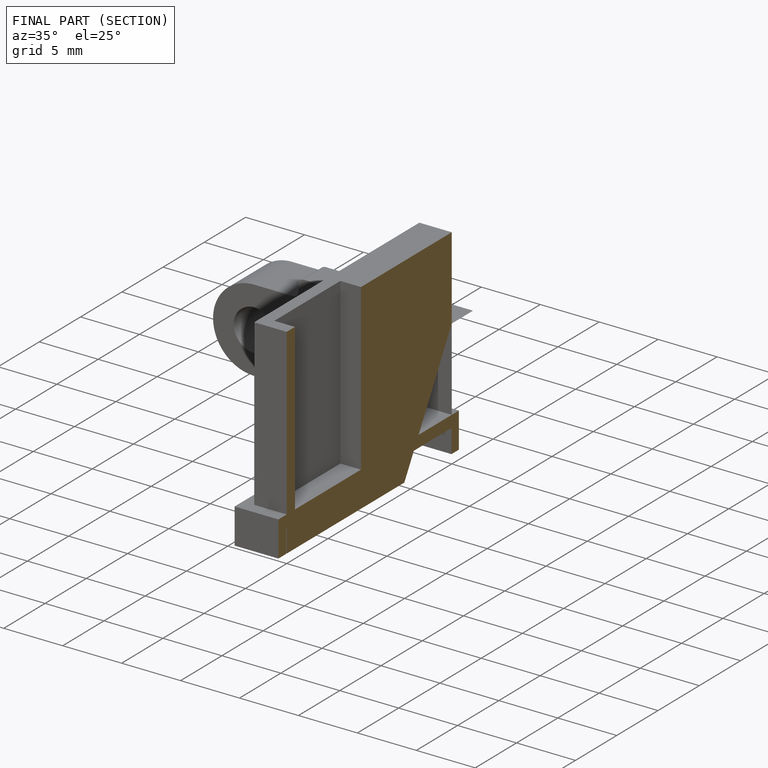
[diagram: finished part — half-section view (interior)]
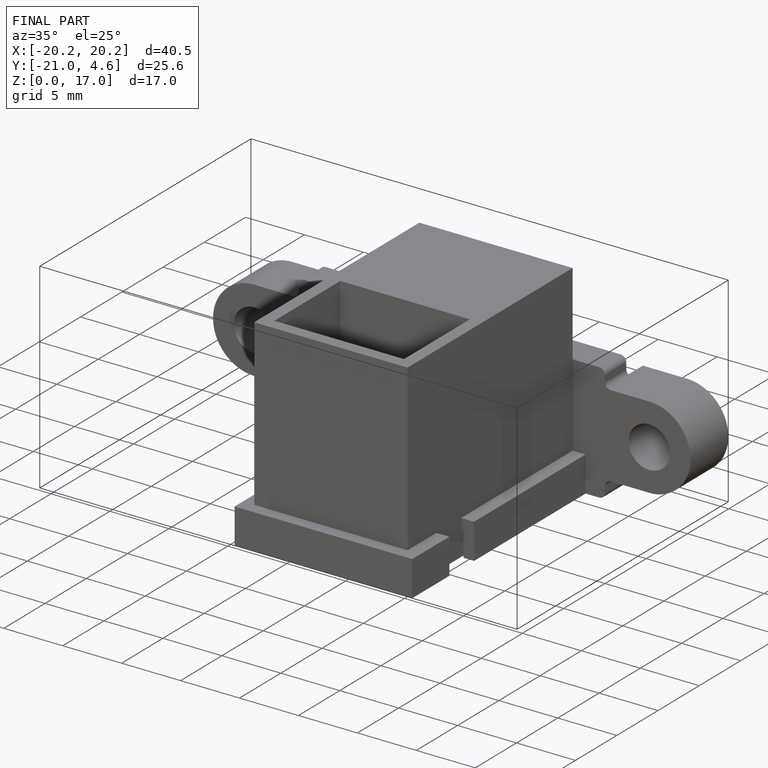
[diagram: finished part — iso view with bounding-box wireframe]
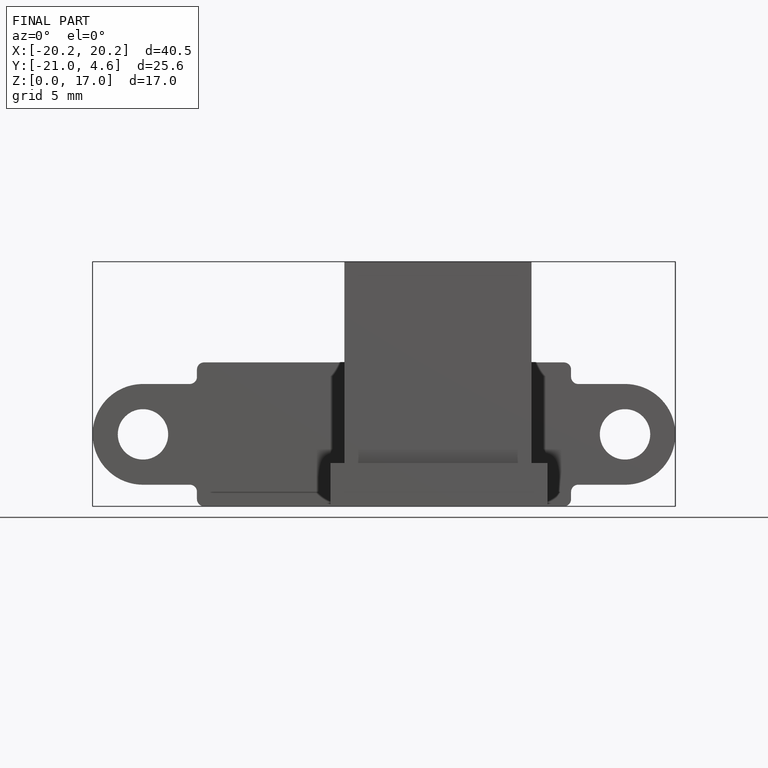
[diagram: finished part — front view with bounding-box wireframe]
